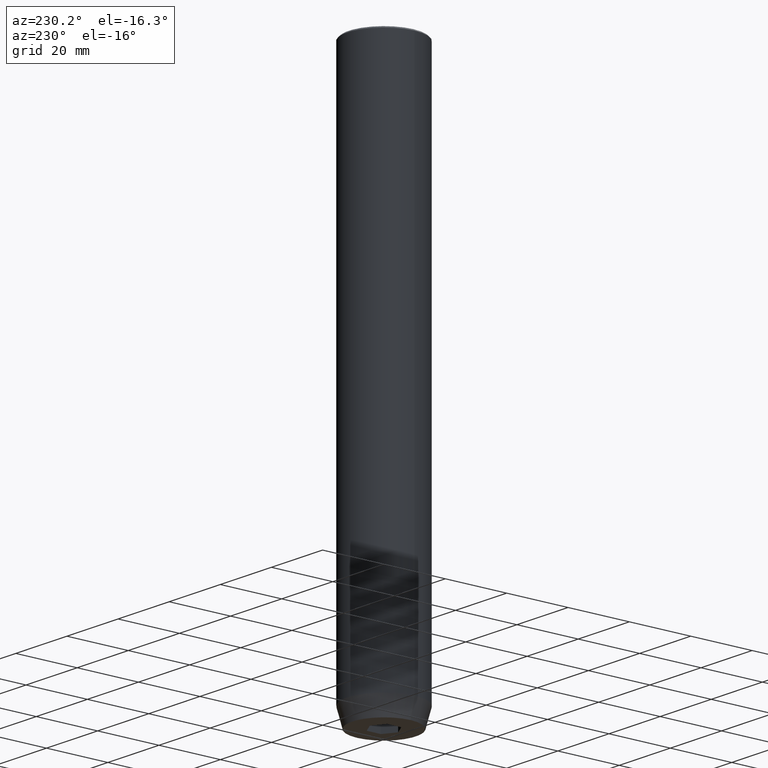
[diagram: clean part render]
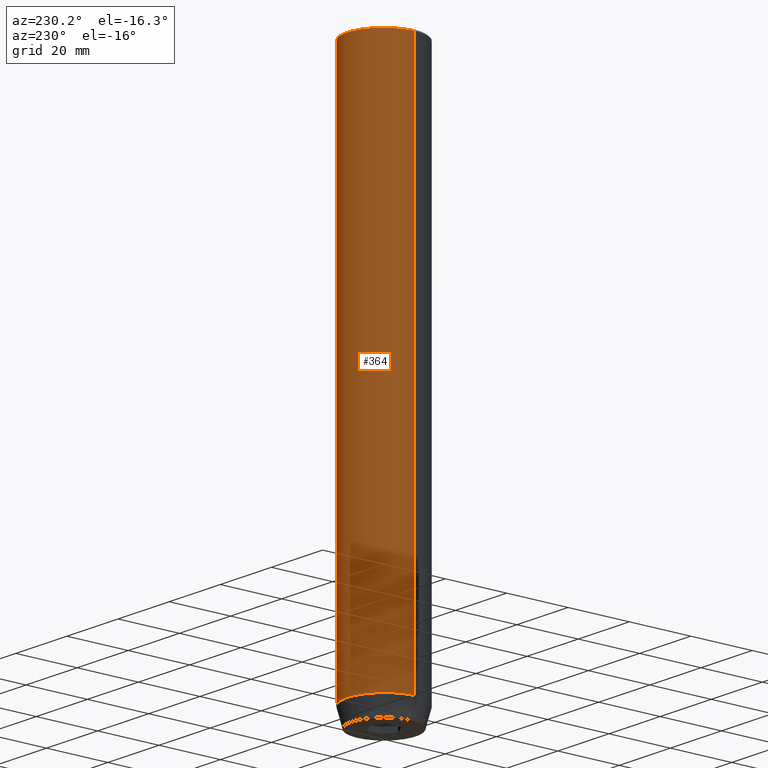
[diagram: same view with one face highlighted and labeled with its STEP entity id]
A machine part, auxiliary view. The second image highlights one B-rep face of the part: STEP entity #364.
In plain terms, the highlighted cylindrical surface (partial cylindrical patch) has radius 12 mm, axis along (-0, -0, 1).
Its self-contained STEP definition (entity closure, byte-faithful):
#3 = CIRCLE ( 'NONE', #189, 12.00000000000000000 ) ;
#7 = EDGE_CURVE ( 'NONE', #160, #449, #604, .T. ) ;
#8 = DIRECTION ( 'NONE',  ( 1.000000000000000000, 0.000000000000000000, 0.000000000000000000 ) ) ;
#12 = FACE_OUTER_BOUND ( 'NONE', #227, .T. ) ;
#13 = EDGE_CURVE ( 'NONE', #545, #160, #3, .T. ) ;
#49 = DIRECTION ( 'NONE',  ( 1.000000000000000000, 0.000000000000000000, 0.000000000000000000 ) ) ;
#68 = EDGE_CURVE ( 'NONE', #545, #626, #329, .T. ) ;
#79 = CARTESIAN_POINT ( 'NONE',  ( 12.00000000000000000, 0.000000000000000000, 0.000000000000000000 ) ) ;
#102 = CARTESIAN_POINT ( 'NONE',  ( 0.000000000000000000, 0.000000000000000000, -0.4999999999999501510 ) ) ;
#115 = CARTESIAN_POINT ( 'NONE',  ( 0.000000000000000000, 0.000000000000000000, -174.0000000000000000 ) ) ;
#136 = ORIENTED_EDGE ( 'NONE', *, *, #68, .F. ) ;
#160 = VERTEX_POINT ( 'NONE', #260 ) ;
#163 = VECTOR ( 'NONE', #613, 1000.000000000000000 ) ;
#170 = DIRECTION ( 'NONE',  ( 1.000000000000000000, 0.000000000000000000, 0.000000000000000000 ) ) ;
#186 = ORIENTED_EDGE ( 'NONE', *, *, #13, .T. ) ;
#189 = AXIS2_PLACEMENT_3D ( 'NONE', #115, #229, #170 ) ;
#199 = CARTESIAN_POINT ( 'NONE',  ( 12.00000000000000000, 0.000000000000000000, -174.0000000000000000 ) ) ;
#207 = DIRECTION ( 'NONE',  ( 0.000000000000000000, 0.000000000000000000, -1.000000000000000000 ) ) ;
#223 = CARTESIAN_POINT ( 'NONE',  ( 0.000000000000000000, 0.000000000000000000, 0.000000000000000000 ) ) ;
#227 = EDGE_LOOP ( 'NONE', ( #186, #611, #465, #136 ) ) ;
#229 = DIRECTION ( 'NONE',  ( -0.000000000000000000, -0.000000000000000000, 1.000000000000000000 ) ) ;
#254 = CIRCLE ( 'NONE', #607, 12.00000000000000000 ) ;
#260 = CARTESIAN_POINT ( 'NONE',  ( -12.00000000000000000, 1.469576158976823947E-15, -174.0000000000000000 ) ) ;
#273 = EDGE_CURVE ( 'NONE', #449, #626, #254, .T. ) ;
#290 = CARTESIAN_POINT ( 'NONE',  ( -12.00000000000000000, 1.469576158976823947E-15, -0.4999999999999501510 ) ) ;
#329 = LINE ( 'NONE', #79, #457 ) ;
#364 = ADVANCED_FACE ( 'NONE', ( #12 ), #550, .T. ) ;
#367 = AXIS2_PLACEMENT_3D ( 'NONE', #223, #452, #8 ) ;
#413 = CARTESIAN_POINT ( 'NONE',  ( -12.00000000000000000, 1.469576158976823947E-15, 0.000000000000000000 ) ) ;
#449 = VERTEX_POINT ( 'NONE', #290 ) ;
#452 = DIRECTION ( 'NONE',  ( -0.000000000000000000, -0.000000000000000000, 1.000000000000000000 ) ) ;
#457 = VECTOR ( 'NONE', #624, 1000.000000000000000 ) ;
#465 = ORIENTED_EDGE ( 'NONE', *, *, #273, .T. ) ;
#545 = VERTEX_POINT ( 'NONE', #199 ) ;
#550 = CYLINDRICAL_SURFACE ( 'NONE', #367, 12.00000000000000000 ) ;
#589 = CARTESIAN_POINT ( 'NONE',  ( 12.00000000000000000, 0.000000000000000000, -0.4999999999999501510 ) ) ;
#604 = LINE ( 'NONE', #413, #163 ) ;
#607 = AXIS2_PLACEMENT_3D ( 'NONE', #102, #207, #49 ) ;
#611 = ORIENTED_EDGE ( 'NONE', *, *, #7, .T. ) ;
#613 = DIRECTION ( 'NONE',  ( -0.000000000000000000, -0.000000000000000000, 1.000000000000000000 ) ) ;
#624 = DIRECTION ( 'NONE',  ( -0.000000000000000000, -0.000000000000000000, 1.000000000000000000 ) ) ;
#626 = VERTEX_POINT ( 'NONE', #589 ) ;